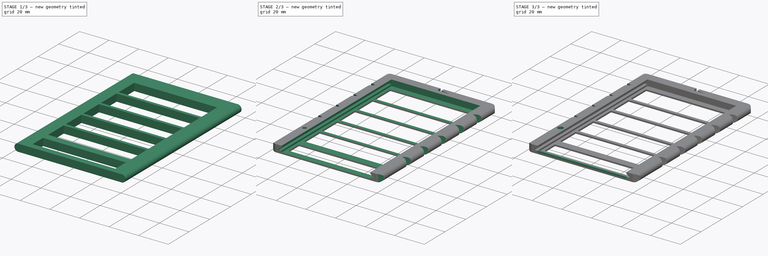
[diagram: build sequence overview — one tinted view per stage of 3, left to right]
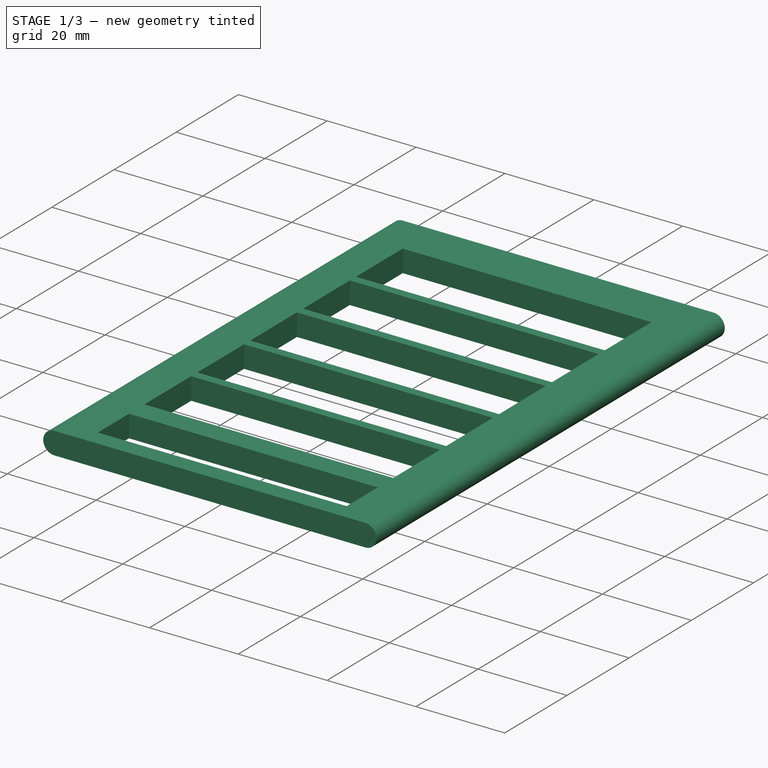
[diagram: stage 1 of 3 — iso view after this stage's code; geometry added in this stage tinted green]
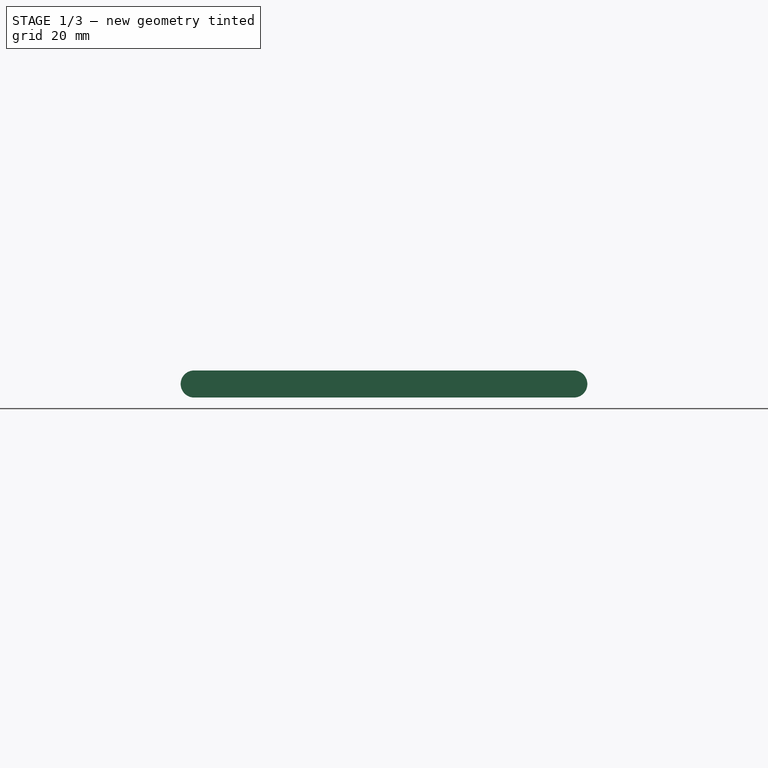
[diagram: stage 1 of 3 — front view after this stage's code; geometry added in this stage tinted green]
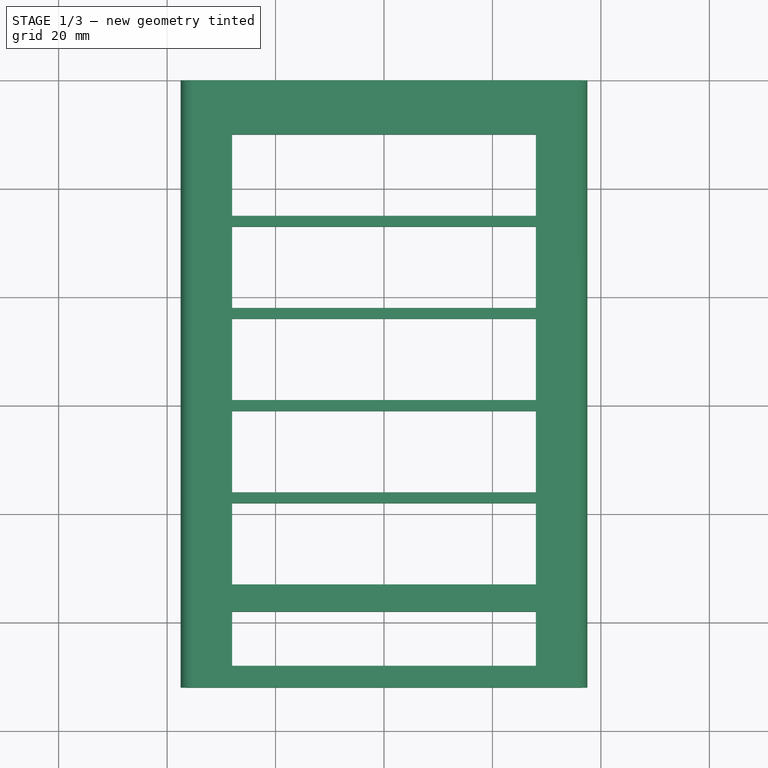
[diagram: stage 1 of 3 — top view after this stage's code; geometry added in this stage tinted green]
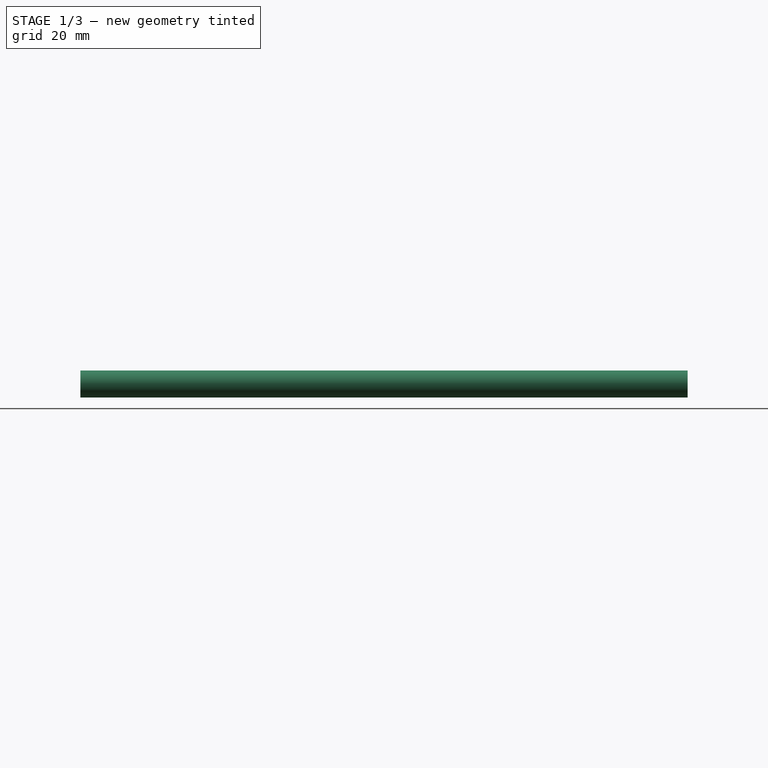
[diagram: stage 1 of 3 — right view after this stage's code; geometry added in this stage tinted green]
FCSTD DOCUMENT  (FreeCAD 0.18R16146 (Git))
Label: Bandolino_Front_V3
License: All rights reserved
LicenseURL: http://en.wikipedia.org/wiki/All_rights_reserved
objects: Sketcher::SketchObject×7, PartDesign::Plane×6, PartDesign::Pocket×5, PartDesign::Pad×2, PartDesign::Body×1
note: 28 computed .brp shape members not serialized (recipe doc carries the construction recipe); baked Part::Feature solids carry a one-line shape summary decoded from their .brp

FEATURE [Sketcher::SketchObject] Sketch
  MapMode = 5
  Placement = pos=(0,0,0) rot=(1,0,0;1.5708rad)
  Support = -> [XZ_Plane]
  sketch-geometry (4):
    g0: ArcOfCircle CenterX=-35 CenterY=2.5 CenterZ=0 NormalX=0 NormalY=0 NormalZ=1 AngleXU=0 Radius=2.5 StartAngle=1.5708 EndAngle=4.71239
    g1: ArcOfCircle CenterX=35 CenterY=2.5 CenterZ=0 NormalX=0 NormalY=0 NormalZ=1 AngleXU=0 Radius=2.5 StartAngle=4.71239 EndAngle=7.85398
    g2: LineSegment StartX=-35 StartY=2.2626e-12 StartZ=0 EndX=35 EndY=2.2626e-12 EndZ=0
    g3: LineSegment StartX=-35 StartY=5 StartZ=0 EndX=35 EndY=5 EndZ=0
  constraints (9):
    c: Tangent(g0,g3) = 1.5708
    c: Tangent(g0,g2) = -1.5708
    c: Tangent(g2,g1) = -1.5708
    c: Tangent(g3,g1) = 1.5708
    c: Horizontal(g2)
    c: Equal(g0,g1)
    c: DistanceX(g2,g2) = 70
    c: DistanceY(g0,g0) = 5
    c: Symmetric(g0,g1,g-1)
FEATURE [PartDesign::Pad] Pad
  Length = 112
  Length2 = 100
  Placement = pos=(0,0,0) rot=(1,0,0;1.5708rad)
  Profile = -> Sketch
  Type = 0
FEATURE [PartDesign::Plane] DatumPlane
  Length = 94.1311
  MapMode = 5
  Placement = pos=(-1.443e-13,3.3e-15,5) rot=(0,0,1;3.14159rad)
  ResizeMode = 0
  Support = -> [Pad]
  Width = 141.131
FEATURE [Sketcher::SketchObject] Sketch001
  MapMode = 5
  Placement = pos=(-1.443e-13,3.3e-15,5) rot=(0,0,1;3.14159rad)
  Support = -> [DatumPlane]
  sketch-geometry (24):
    g0: LineSegment StartX=-28 StartY=108 StartZ=0 EndX=28 EndY=108 EndZ=0
    g1: LineSegment StartX=28 StartY=108 StartZ=0 EndX=28 EndY=98 EndZ=0
    g2: LineSegment StartX=28 StartY=98 StartZ=0 EndX=-28 EndY=98 EndZ=0
    g3: LineSegment StartX=-28 StartY=98 StartZ=0 EndX=-28 EndY=108 EndZ=0
    g4: LineSegment StartX=-28 StartY=93 StartZ=0 EndX=28 EndY=93 EndZ=0
    g5: LineSegment StartX=28 StartY=93 StartZ=0 EndX=28 EndY=78 EndZ=0
    g6: LineSegment StartX=28 StartY=78 StartZ=0 EndX=-28 EndY=78 EndZ=0
    g7: LineSegment StartX=-28 StartY=78 StartZ=0 EndX=-28 EndY=93 EndZ=0
    g8: LineSegment StartX=-28 StartY=76 StartZ=0 EndX=28 EndY=76 EndZ=0
    g9: LineSegment StartX=28 StartY=76 StartZ=0 EndX=28 EndY=61 EndZ=0
    g10: LineSegment StartX=28 StartY=61 StartZ=0 EndX=-28 EndY=61 EndZ=0
    g11: LineSegment StartX=-28 StartY=61 StartZ=0 EndX=-28 EndY=76 EndZ=0
    g12: LineSegment StartX=-28 StartY=59 StartZ=0 EndX=28 EndY=59 EndZ=0
    g13: LineSegment StartX=28 StartY=59 StartZ=0 EndX=28 EndY=44 EndZ=0
    g14: LineSegment StartX=28 StartY=44 StartZ=0 EndX=-28 EndY=44 EndZ=0
    g15: LineSegment StartX=-28 StartY=44 StartZ=0 EndX=-28 EndY=59 EndZ=0
    g16: LineSegment StartX=-28 StartY=42 StartZ=0 EndX=28 EndY=42 EndZ=0
    g17: LineSegment StartX=28 StartY=42 StartZ=0 EndX=28 EndY=27 EndZ=0
    g18: LineSegment StartX=28 StartY=27 StartZ=0 EndX=-28 EndY=27 EndZ=0
    g19: LineSegment StartX=-28 StartY=27 StartZ=0 EndX=-28 EndY=42 EndZ=0
    g20: LineSegment StartX=-28 StartY=25 StartZ=0 EndX=28 EndY=25 EndZ=0
    g21: LineSegment StartX=28 StartY=25 StartZ=0 EndX=28 EndY=10 EndZ=0
    g22: LineSegment StartX=28 StartY=10 StartZ=0 EndX=-28 EndY=10 EndZ=0
    g23: LineSegment StartX=-28 StartY=10 StartZ=0 EndX=-28 EndY=25 EndZ=0
  constraints (71):
    c: Coincident(g0,g1)
    c: Coincident(g1,g2)
    c: Coincident(g2,g3)
    c: Coincident(g3,g0)
    c: Horizontal(g0)
    c: Horizontal(g2)
    c: Vertical(g1)
    c: Vertical(g3)
    c: Coincident(g4,g5)
    c: Coincident(g5,g6)
    c: Coincident(g6,g7)
    c: Coincident(g7,g4)
    c: Horizontal(g4)
    c: Horizontal(g6)
    c: Vertical(g5)
    c: Vertical(g7)
    c: Coincident(g8,g9)
    c: Coincident(g9,g10)
    c: Coincident(g10,g11)
    c: Coincident(g11,g8)
    c: Horizontal(g8)
    c: Horizontal(g10)
    c: Vertical(g9)
    c: Vertical(g11)
    c: Coincident(g12,g13)
    c: Coincident(g13,g14)
    c: Coincident(g14,g15)
    c: Coincident(g15,g12)
    c: Horizontal(g12)
    c: Horizontal(g14)
    c: Vertical(g13)
    c: Vertical(g15)
    c: Coincident(g16,g17)
    c: Coincident(g17,g18)
    c: Coincident(g18,g19)
    c: Coincident(g19,g16)
    c: Horizontal(g16)
    c: Horizontal(g18)
    c: Vertical(g17)
    c: Vertical(g19)
    c: Coincident(g20,g21)
    c: Coincident(g21,g22)
    c: Coincident(g22,g23)
    c: Coincident(g23,g20)
    c: Horizontal(g20)
    c: Vertical(g21)
    c: Vertical(g23)
    c: DistanceY(g21,g21) = 15
    c: DistanceX(g22,g22) = 56
    c: Equal(g22,g18)
    c: Equal(g18,g14)
    c: Equal(g14,g10)
    c: Equal(g10,g6)
    c: Equal(g6,g2)
    c: Equal(g21,g17)
    c: Equal(g17,g13)
    c: Equal(g13,g9)
    c: Equal(g9,g5)
    c: DistanceY(g1,g1) = 10
    c: DistanceY(g-1,g22) = 10
    c: Symmetric(g22,g21,g-2)
    c: DistanceY(g20,g17) = 2
    c: Vertical(g17,g20)
    c: DistanceY(g16,g13) = 2
    c: Vertical(g13,g16)
    c: DistanceY(g12,g9) = 2
    c: Vertical(g12,g9)
    c: DistanceY(g8,g5) = 2
    c: Vertical(g8,g5)
    c: DistanceY(g4,g1) = 5
    c: Vertical(g4,g1)
FEATURE [PartDesign::Pocket] Pocket  label="Pocket Fenster"
  BaseFeature = -> Pad
  Length = 5
  Length2 = 100
  Placement = pos=(0,0,0) rot=(1,0,0;1.5708rad)
  Profile = -> Sketch001
  Type = 1
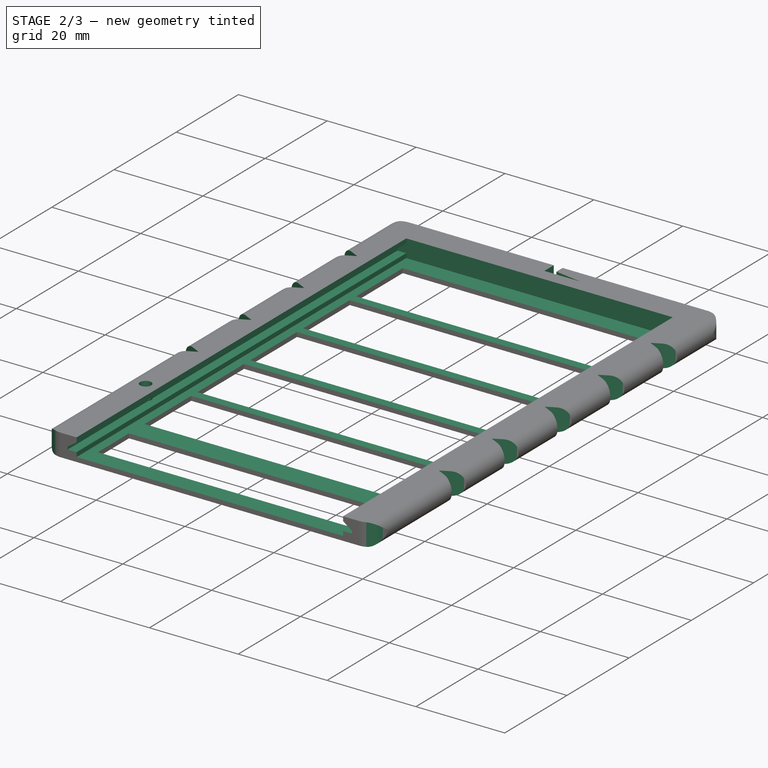
[diagram: stage 2 of 3 — iso view after this stage's code; geometry added in this stage tinted green]
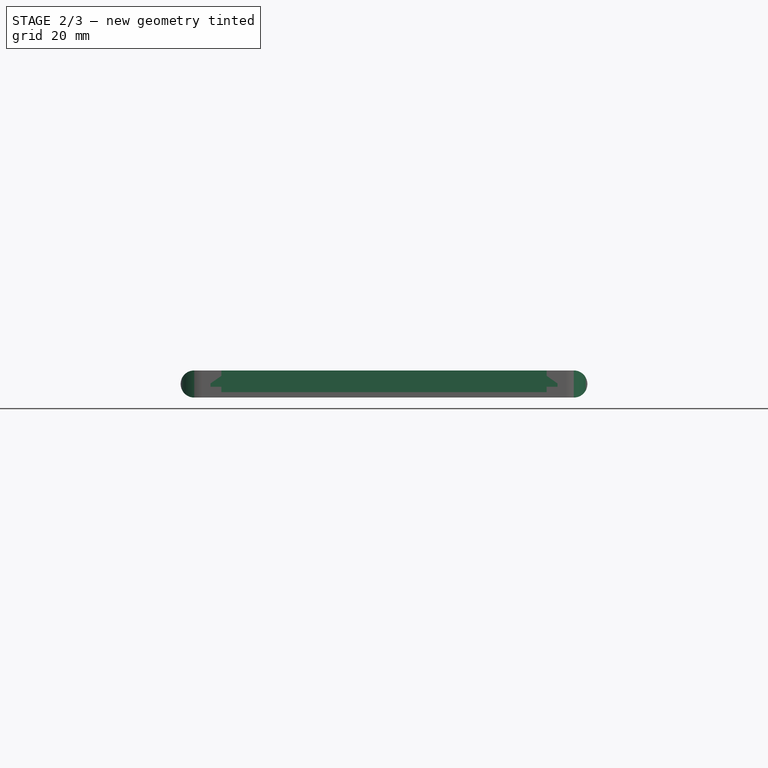
[diagram: stage 2 of 3 — front view after this stage's code; geometry added in this stage tinted green]
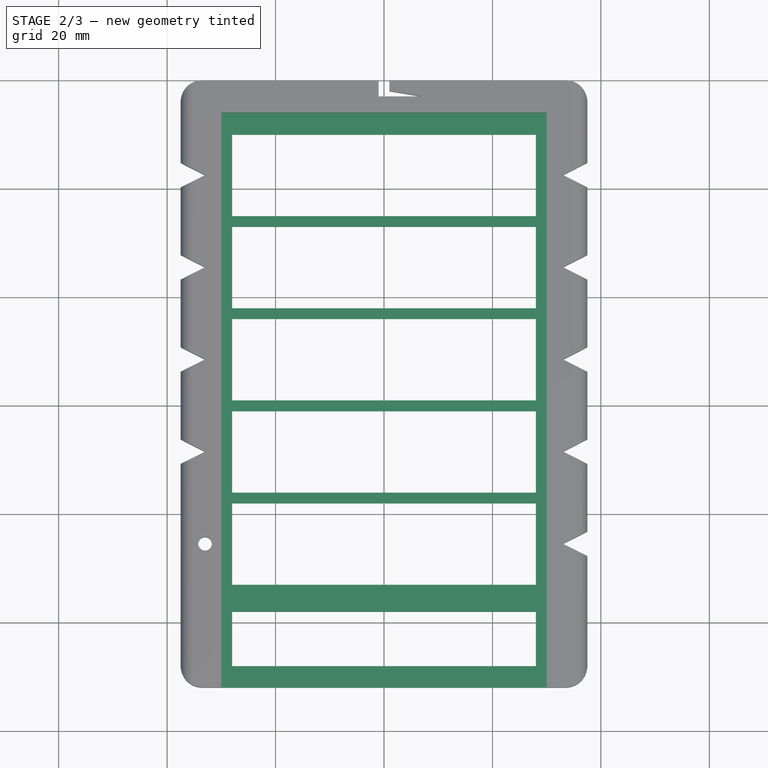
[diagram: stage 2 of 3 — top view after this stage's code; geometry added in this stage tinted green]
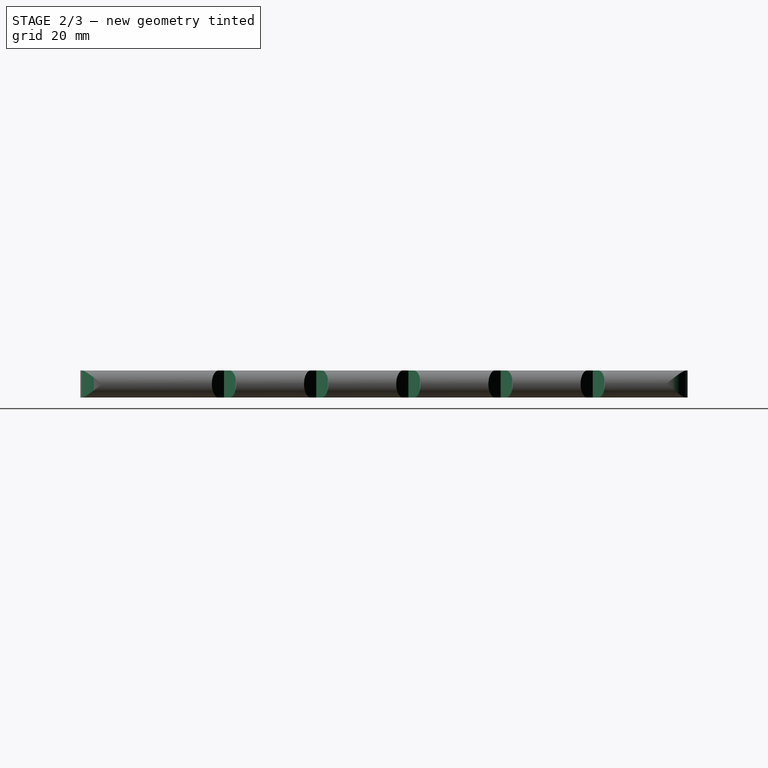
[diagram: stage 2 of 3 — right view after this stage's code; geometry added in this stage tinted green]
FEATURE [PartDesign::Plane] DatumPlane001
  Length = 82.746
  MapMode = 5
  Placement = pos=(0,-112,4.95e-14) rot=(1,0,0;1.5708rad)
  ResizeMode = 0
  Support = -> [Pocket]
  Width = 27.746
FEATURE [Sketcher::SketchObject] Sketch002
  MapMode = 5
  Placement = pos=(0,-112,4.95e-14) rot=(1,0,0;1.5708rad)
  Support = -> [DatumPlane001]
  sketch-geometry (12):
    g0: LineSegment StartX=-30 StartY=9 StartZ=0 EndX=30 EndY=9 EndZ=0
    g1: LineSegment StartX=30 StartY=9 StartZ=0 EndX=30 EndY=4 EndZ=0
    g2: LineSegment StartX=-30 StartY=4 StartZ=0 EndX=-30 EndY=9 EndZ=0
    g3: LineSegment StartX=-32 StartY=2 StartZ=0 EndX=-30 EndY=2 EndZ=0
    g4: LineSegment StartX=-30 StartY=2 StartZ=0 EndX=-30 EndY=1 EndZ=0
    g5: LineSegment StartX=-30 StartY=1 StartZ=0 EndX=30 EndY=1 EndZ=0
    g6: LineSegment StartX=30 StartY=1 StartZ=0 EndX=30 EndY=2 EndZ=0
    g7: LineSegment StartX=30 StartY=2 StartZ=0 EndX=32 EndY=2 EndZ=0
    g8: LineSegment StartX=-30 StartY=4 StartZ=0 EndX=-32 EndY=2.6 EndZ=0
    g9: LineSegment StartX=-32 StartY=2.6 StartZ=0 EndX=-32 EndY=2 EndZ=0
    g10: LineSegment StartX=30 StartY=4 StartZ=0 EndX=32 EndY=2.6 EndZ=0
    g11: LineSegment StartX=32 StartY=2.6 StartZ=0 EndX=32 EndY=2 EndZ=0
  constraints (31):
    c: Coincident(g0,g1)
    c: Vertical(g1)
    c: Coincident(g2,g0)
    c: DistanceX(g0,g0) = 60
    c: DistanceY(g2,g2) = 5
    c: Symmetric(g0,g0,g-2)
    c: Symmetric(g2,g1,g-2)
    c: Horizontal(g3)
    c: Coincident(g3,g4)
    c: Vertical(g4)
    c: Coincident(g4,g5)
    c: Coincident(g5,g6)
    c: Vertical(g6)
    c: Coincident(g6,g7)
    c: Vertical(g2,g3)
    c: Symmetric(g3,g6,g-2)
    c: Horizontal(g5)
    c: DistanceY(g4,g4) = 1
    c: Coincident(g2,g8)
    c: Coincident(g8,g9)
    c: Coincident(g9,g3)
    c: Vertical(g9)
    c: Coincident(g1,g10)
    c: Coincident(g10,g11)
    c: Coincident(g11,g7)
    c: DistanceY(g9,g9) = 0.6
    c: DistanceY(g3,g2) = 2
    c: DistanceY(g-1,g4) = 1
    c: DistanceX(g3,g3) = 2
    c: Symmetric(g7,g3,g-2)
    c: Symmetric(g10,g8,g-2)
FEATURE [PartDesign::Pocket] Pocket001
  BaseFeature = -> Pocket
  Length = 106
  Length2 = 100
  Placement = pos=(0,0,0) rot=(1,0,0;1.5708rad)
  Profile = -> Sketch002
  Type = 0
FEATURE [PartDesign::Plane] DatumPlane002
  Length = 94.1311
  MapMode = 5
  Placement = pos=(-1.443e-13,3.3e-15,5) rot=(0,0,1;3.14159rad)
  ResizeMode = 0
  Support = -> [Pocket001]
  Width = 141.131
FEATURE [Sketcher::SketchObject] Sketch003
  MapMode = 5
  Placement = pos=(-1.443e-13,3.3e-15,5) rot=(0,0,1;3.14159rad)
  Support = -> [DatumPlane002]
  sketch-geometry (33):
    g0: LineSegment StartX=-38 StartY=20 StartZ=0 EndX=-33 EndY=17.5 EndZ=0
    g1: LineSegment StartX=-33 StartY=17.5 StartZ=0 EndX=-38 EndY=15 EndZ=0
    g2: LineSegment StartX=-38 StartY=15 StartZ=0 EndX=-38 EndY=20 EndZ=0
    g3: LineSegment StartX=-38 StartY=32 StartZ=0 EndX=-33 EndY=34.5 EndZ=0
    g4: LineSegment StartX=-33 StartY=34.5 StartZ=0 EndX=-38 EndY=37 EndZ=0
    g5: LineSegment StartX=-38 StartY=37 StartZ=0 EndX=-38 EndY=32 EndZ=0
    g6: LineSegment StartX=38 StartY=20 StartZ=0 EndX=33 EndY=17.5 EndZ=0
    g7: LineSegment StartX=33 StartY=17.5 StartZ=0 EndX=38 EndY=15 EndZ=0
    g8: LineSegment StartX=38 StartY=15 StartZ=0 EndX=38 EndY=20 EndZ=0
    g9: LineSegment StartX=-38 StartY=54 StartZ=0 EndX=-38 EndY=49 EndZ=0
    g10: LineSegment StartX=-38 StartY=49 StartZ=0 EndX=-33 EndY=51.5 EndZ=0
    g11: LineSegment StartX=-33 StartY=51.5 StartZ=0 EndX=-38 EndY=54 EndZ=0
    g12: LineSegment StartX=-38 StartY=71 StartZ=0 EndX=-38 EndY=66 EndZ=0
    g13: LineSegment StartX=-38 StartY=66 StartZ=0 EndX=-33 EndY=68.5 EndZ=0
    g14: LineSegment StartX=-33 StartY=68.5 StartZ=0 EndX=-38 EndY=71 EndZ=0
    g15: LineSegment StartX=-38 StartY=88 StartZ=0 EndX=-38 EndY=83 EndZ=0
    g16: LineSegment StartX=-38 StartY=83 StartZ=0 EndX=-33 EndY=85.5 EndZ=0
    g17: LineSegment StartX=-33 StartY=85.5 StartZ=0 EndX=-38 EndY=88 EndZ=0
    g18: LineSegment StartX=38 StartY=32 StartZ=0 EndX=38 EndY=37 EndZ=0
    g19: LineSegment StartX=38 StartY=37 StartZ=0 EndX=33 EndY=34.5 EndZ=0
    g20: LineSegment StartX=33 StartY=34.5 StartZ=0 EndX=38 EndY=32 EndZ=0
    g21: LineSegment StartX=38 StartY=49 StartZ=0 EndX=38 EndY=54 EndZ=0
    g22: LineSegment StartX=38 StartY=54 StartZ=0 EndX=33 EndY=51.5 EndZ=0
    g23: LineSegment StartX=33 StartY=51.5 StartZ=0 EndX=38 EndY=49 EndZ=0
    g24: LineSegment StartX=38 StartY=66 StartZ=0 EndX=38 EndY=71 EndZ=0
    g25: LineSegment StartX=38 StartY=71 StartZ=0 EndX=33 EndY=68.5 EndZ=0
    g26: LineSegment StartX=33 StartY=68.5 StartZ=0 EndX=38 EndY=66 EndZ=0
    g27: Circle CenterX=33 CenterY=85.5 CenterZ=0 NormalX=0 NormalY=0 NormalZ=1 AngleXU=0 Radius=1.25
    g28: LineSegment StartX=-1 StartY=0 StartZ=0 EndX=1 EndY=0 EndZ=0
    g29: LineSegment StartX=1 StartY=0 StartZ=0 EndX=1 EndY=3 EndZ=0
    g30: LineSegment StartX=1 StartY=3 StartZ=0 EndX=-7 EndY=3 EndZ=0
    g31: LineSegment StartX=-7 StartY=3 StartZ=0 EndX=-1 EndY=2 EndZ=0
    g32: LineSegment StartX=-1 StartY=2 StartZ=0 EndX=-1 EndY=0 EndZ=0
  constraints (93):
    c: Coincident(g0,g1)
    c: Coincident(g2,g1)
    c: Coincident(g2,g0)
    c: Vertical(g2)
    c: Coincident(g3,g4)
    c: Coincident(g4,g5)
    c: Coincident(g5,g3)
    c: Coincident(g6,g7)
    c: Coincident(g7,g8)
    c: Coincident(g8,g6)
    c: Vertical(g8)
    c: DistanceY(g2,g2) = 5
    c: DistanceX(g1,g0) = 5
    c: Equal(g1,g0)
    c: Equal(g2,g8)
    c: DistanceX(g6,g7) = 5
    c: Symmetric(g0,g6,g-2)
    c: Equal(g6,g7)
    c: DistanceY(g-1,g0) = 17.5
    c: DistanceX(g1,g-1) = 38
    c: Vertical(g5)
    c: DistanceY(g0,g3) = 17
    c: Vertical(g9)
    c: Coincident(g9,g10)
    c: Coincident(g10,g11)
    c: Coincident(g11,g9)
    c: Coincident(g12,g13)
    c: Coincident(g13,g14)
    c: Vertical(g15)
    c: Coincident(g15,g16)
    c: Coincident(g16,g17)
    c: Coincident(g17,g15)
    c: Coincident(g12,g14)
    c: Vertical(g12)
    c: DistanceY(g3,g10) = 17
    c: DistanceY(g10,g13) = 17
    c: DistanceY(g13,g16) = 17
    c: Vertical(g0,g3)
    c: Vertical(g3,g10)
    c: Vertical(g10,g13)
    c: Vertical(g13,g16)
    c: Equal(g2,g5)
    c: Equal(g5,g9)
    c: Equal(g9,g12)
    c: Equal(g12,g15)
    c: Equal(g0,g3)
    c: Equal(g3,g4)
    c: Equal(g4,g10)
    c: Equal(g10,g11)
    c: Equal(g11,g13)
    c: Equal(g13,g14)
    c: Equal(g14,g16)
    c: Equal(g16,g17)
    c: Vertical(g18)
    c: Coincident(g18,g19)
    c: Coincident(g19,g20)
    c: Coincident(g20,g18)
    c: Coincident(g21,g22)
    c: Coincident(g22,g23)
    c: Coincident(g23,g21)
    c: Coincident(g24,g25)
    c: Coincident(g25,g26)
    c: Coincident(g26,g24)
    c: Vertical(g21)
    c: Vertical(g24)
    c: Equal(g8,g18)
    c: Equal(g18,g21)
    c: Equal(g21,g24)
    c: Equal(g6,g20)
    c: Equal(g20,g19)
    c: Equal(g19,g23)
    c: Equal(g23,g22)
    c: Equal(g22,g26)
    c: Equal(g26,g25)
    c: Symmetric(g13,g25,g-2)
    c: Symmetric(g10,g22,g-2)
    c: Symmetric(g3,g19,g-2)
    c: Symmetric(g16,g27,g-2)
    c: Diameter(g27) = 2.5
    c: Coincident(g28,g29)
    c: Vertical(g29)
    c: Coincident(g29,g30)
    c: Coincident(g30,g31)
    c: Coincident(g31,g32)
    c: Coincident(g32,g28)
    c: Vertical(g32)
    c: Horizontal(g30)
    c: Symmetric(g28,g28,g-2)
    c: DistanceY(g29,g29) = 3
    c: DistanceY(g32,g32) = 2
    c: DistanceX(g30,g30) = 8
    c: DistanceX(g28,g28) = 2
    c: PointOnObject(g28,g-1)
FEATURE [PartDesign::Pocket] Pocket002
  BaseFeature = -> Pocket001
  Length = 5
  Length2 = 100
  Placement = pos=(0,0,0) rot=(1,0,0;1.5708rad)
  Profile = -> Sketch003
  Type = 1
FEATURE [PartDesign::Plane] DatumPlane003
  Length = 94.1311
  MapMode = 5
  Placement = pos=(0,0,2.2626e-12) rot=(1,0,0;3.14159rad)
  ResizeMode = 0
  Support = -> [Pocket002]
  Width = 141.131
FEATURE [Sketcher::SketchObject] Sketch004
  MapMode = 5
  Placement = pos=(0,0,2.2626e-12) rot=(1,0,0;3.14159rad)
  Support = -> [DatumPlane003]
  sketch-geometry (12):
    g0: ArcOfCircle CenterX=-33.5 CenterY=4 CenterZ=0 NormalX=0 NormalY=0 NormalZ=1 AngleXU=0 Radius=4 StartAngle=3.14159 EndAngle=4.71239
    g1: LineSegment StartX=-37.5 StartY=4 StartZ=0 EndX=-37.5 EndY=-1.8e-15 EndZ=0
    g2: LineSegment StartX=-37.5 StartY=-2.2e-15 StartZ=0 EndX=-33.5 EndY=-2.2e-15 EndZ=0
    g3: ArcOfCircle CenterX=33.5 CenterY=4 CenterZ=0 NormalX=0 NormalY=0 NormalZ=1 AngleXU=0 Radius=4 StartAngle=4.71239 EndAngle=6.28319
    g4: LineSegment StartX=33.5 StartY=-2.7e-15 StartZ=0 EndX=37.5 EndY=-2.7e-15 EndZ=0
    g5: LineSegment StartX=37.5 StartY=-2.7e-15 StartZ=0 EndX=37.5 EndY=4 EndZ=0
    g6: ArcOfCircle CenterX=-33.5 CenterY=108 CenterZ=0 NormalX=0 NormalY=0 NormalZ=1 AngleXU=0 Radius=4 StartAngle=1.5708 EndAngle=3.14159
    g7: ArcOfCircle CenterX=33.5 CenterY=108 CenterZ=0 NormalX=0 NormalY=0 NormalZ=1 AngleXU=0 Radius=4 StartAngle=1e-15 EndAngle=1.5708
    g8: LineSegment StartX=33.5 StartY=112 StartZ=0 EndX=37.5 EndY=112 EndZ=0
    g9: LineSegment StartX=37.5 StartY=112 StartZ=0 EndX=37.5 EndY=108 EndZ=0
    g10: LineSegment StartX=-33.5 StartY=112 StartZ=0 EndX=-37.5 EndY=112 EndZ=0
    g11: LineSegment StartX=-37.5 StartY=112 StartZ=0 EndX=-37.5 EndY=108 EndZ=0
  constraints (39):
    c: PointOnObject(g0,g-1)
    c: Vertical(g0,g0)
    c: Horizontal(g0,g0)
    c: Radius(g0) = 4
    c: Coincident(g0,g1)
    c: Coincident(g1,g2)
    c: Coincident(g2,g0)
    c: Horizontal(g2)
    c: Vertical(g1)
    c: DistanceX(g1,g-1) = 37.5
    c: Radius(g3) = 4
    c: Vertical(g3,g3)
    c: Horizontal(g3,g3)
    c: Coincident(g4,g3)
    c: Horizontal(g4)
    c: Coincident(g5,g4)
    c: Vertical(g5)
    c: Coincident(g5,g3)
    c: Symmetric(g1,g4,g-2)
    c: Radius(g6) = 4
    c: Radius(g7) = 4
    c: Horizontal(g6,g6)
    c: Vertical(g6,g6)
    c: Horizontal(g7,g7)
    c: Vertical(g7,g7)
    c: Coincident(g7,g8)
    c: Coincident(g8,g9)
    c: Coincident(g9,g7)
    c: Vertical(g9)
    c: Horizontal(g8)
    c: Coincident(g6,g10)
    c: Coincident(g10,g11)
    c: Coincident(g11,g6)
    c: Vertical(g11)
    c: Horizontal(g10)
    c: Vertical(g10,g1)
    c: Vertical(g4,g8)
    c: Horizontal(g10,g8)
    c: DistanceY(g1,g10) = 112
FEATURE [PartDesign::Pocket] Pocket003
  BaseFeature = -> Pocket002
  Length = 5
  Length2 = 100
  Placement = pos=(0,0,0) rot=(1,0,0;1.5708rad)
  Profile = -> Sketch004
  Type = 1
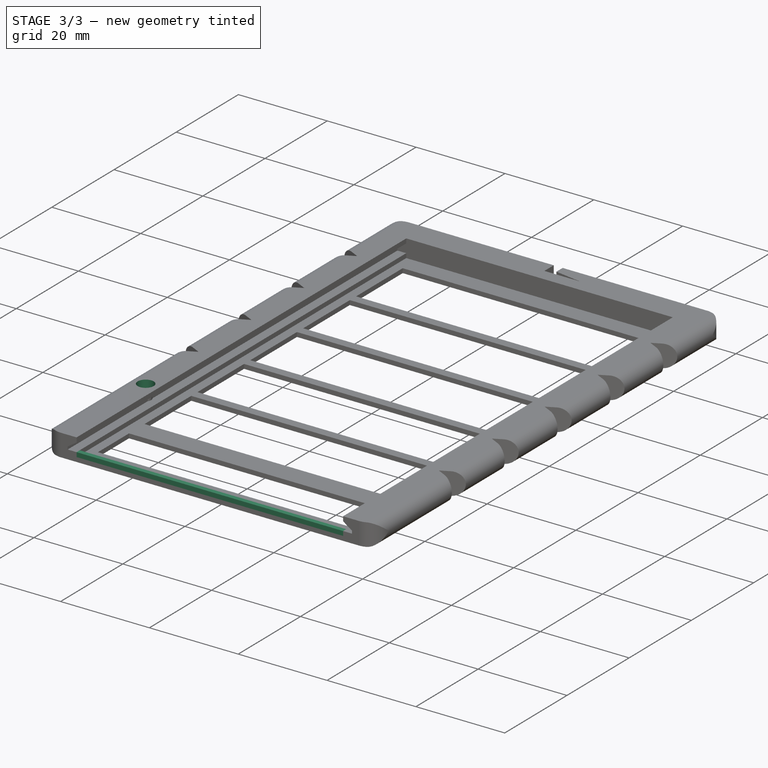
[diagram: stage 3 of 3 — iso view after this stage's code; geometry added in this stage tinted green]
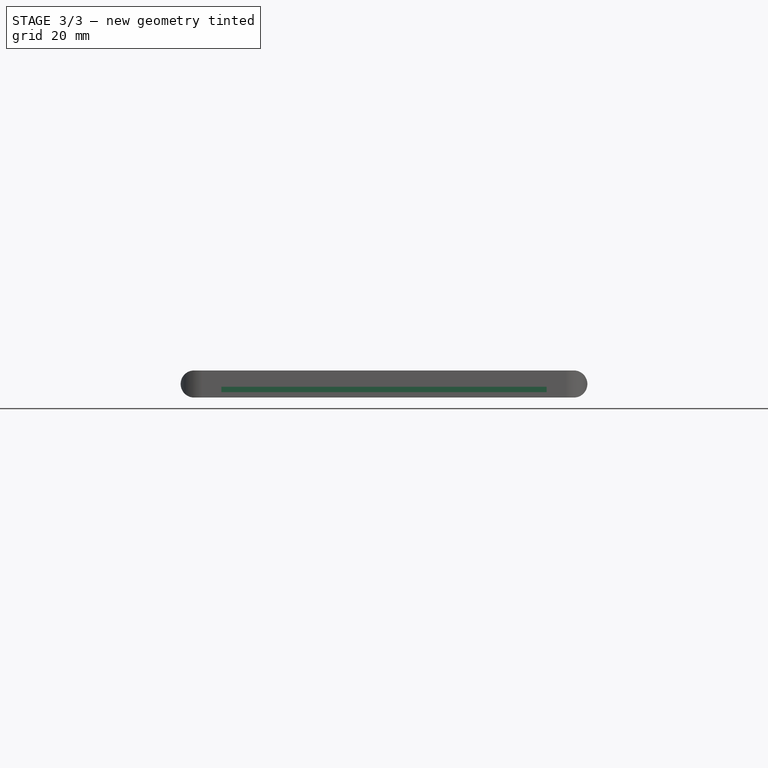
[diagram: stage 3 of 3 — front view after this stage's code; geometry added in this stage tinted green]
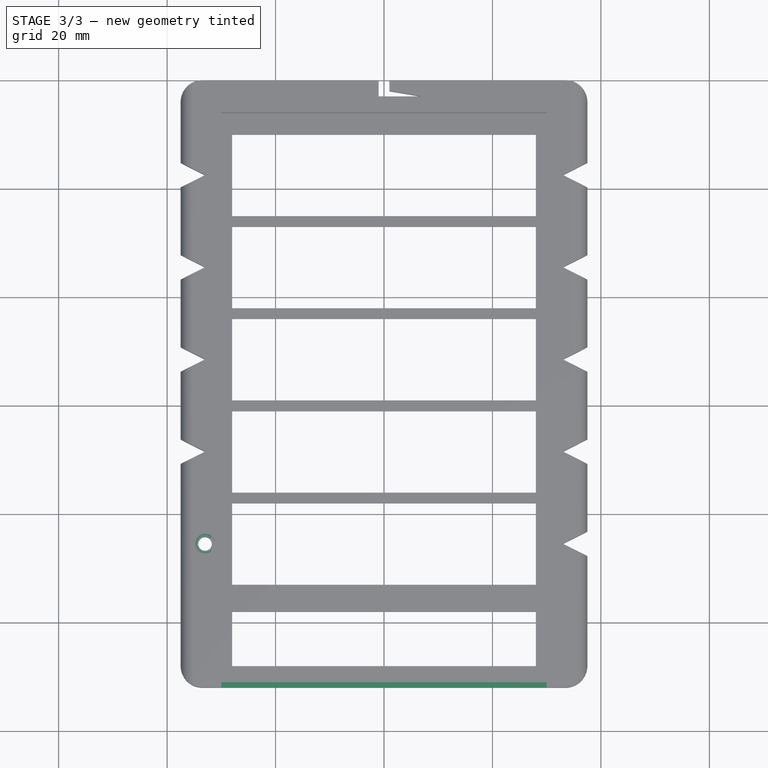
[diagram: stage 3 of 3 — top view after this stage's code; geometry added in this stage tinted green]
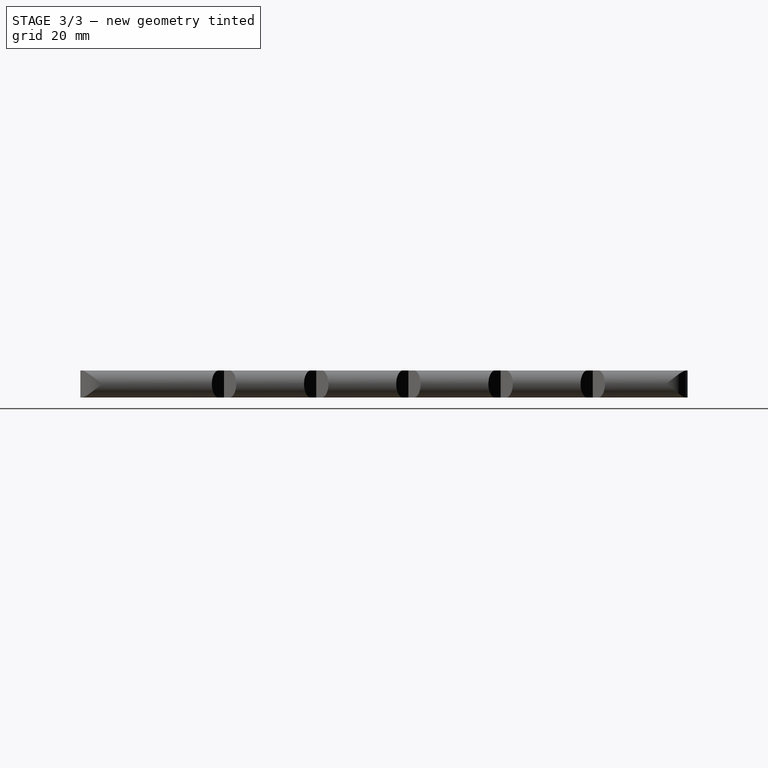
[diagram: stage 3 of 3 — right view after this stage's code; geometry added in this stage tinted green]
FEATURE [PartDesign::Plane] DatumPlane004
  Length = 94.1311
  MapMode = 5
  Placement = pos=(-1.443e-13,3.3e-15,5) rot=(0,0,1;3.14159rad)
  ResizeMode = 0
  Support = -> [Pocket003]
  Width = 141.131
FEATURE [Sketcher::SketchObject] Sketch005
  ExternalGeometry = -> [Pocket003]
  MapMode = 5
  Placement = pos=(-1.443e-13,3.3e-15,5) rot=(0,0,1;3.14159rad)
  Support = -> [DatumPlane004]
  sketch-geometry (1):
    g0: Circle CenterX=33 CenterY=85.5 CenterZ=0 NormalX=0 NormalY=0 NormalZ=1 AngleXU=0 Radius=1.8
  constraints (2):
    c: Coincident(g0,g-3)
    c: Radius(g0) = 1.8
FEATURE [PartDesign::Pocket] Pocket004
  BaseFeature = -> Pocket003
  Length = 2
  Length2 = 100
  Placement = pos=(0,0,0) rot=(1,0,0;1.5708rad)
  Profile = -> Sketch005
  Type = 0
FEATURE [PartDesign::Plane] DatumPlane005
  Length = 94.1311
  MapMode = 5
  Placement = pos=(0,1.6e-15,1) rot=(0,0,1;3.14159rad)
  ResizeMode = 0
  Support = -> [Pocket004]
  Width = 141.131
FEATURE [Sketcher::SketchObject] Sketch006
  MapMode = 5
  Placement = pos=(0,1.6e-15,1) rot=(0,0,1;3.14159rad)
  Support = -> [DatumPlane005]
  sketch-geometry (4):
    g0: LineSegment StartX=-30 StartY=112 StartZ=0 EndX=30 EndY=112 EndZ=0
    g1: LineSegment StartX=30 StartY=112 StartZ=0 EndX=30 EndY=111 EndZ=0
    g2: LineSegment StartX=30 StartY=111 StartZ=0 EndX=-30 EndY=111 EndZ=0
    g3: LineSegment StartX=-30 StartY=111 StartZ=0 EndX=-30 EndY=112 EndZ=0
  constraints (11):
    c: Coincident(g0,g1)
    c: Coincident(g1,g2)
    c: Coincident(g2,g3)
    c: Coincident(g3,g0)
    c: Horizontal(g2)
    c: Vertical(g1)
    c: Vertical(g3)
    c: DistanceY(g1,g1) = 1
    c: DistanceX(g0,g0) = 60
    c: Symmetric(g0,g0,g-2)
    c: DistanceY(g0) = 112
FEATURE [PartDesign::Pad] Pad001
  BaseFeature = -> Pocket004
  Length = 1
  Length2 = 100
  Placement = pos=(0,0,0) rot=(1,0,0;1.5708rad)
  Profile = -> Sketch006
  Type = 0
FEATURE [PartDesign::Body] Body
  Group = -> [Sketch,Pad,DatumPlane,Sketch001,Pocket,DatumPlane001,Sketch002,Pocket001,DatumPlane002,Sketch003,Pocket002,DatumPlane003,Sketch004,Pocket003,DatumPlane004,Sketch005,Pocket004,DatumPlane005,Sketch006,Pad001]
  Origin = -> Origin
  Tip = -> Pad001
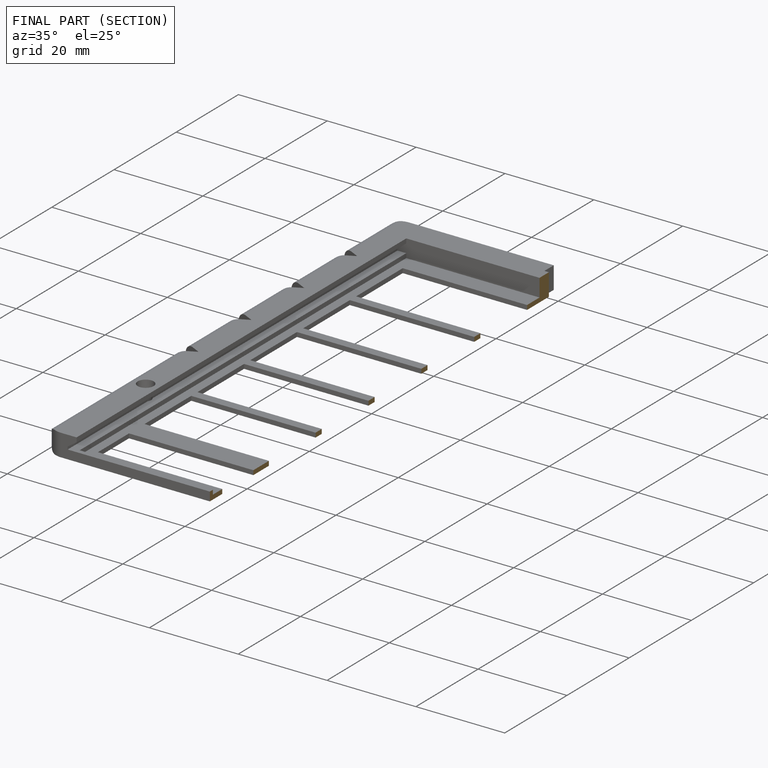
[diagram: finished part — half-section view (interior)]
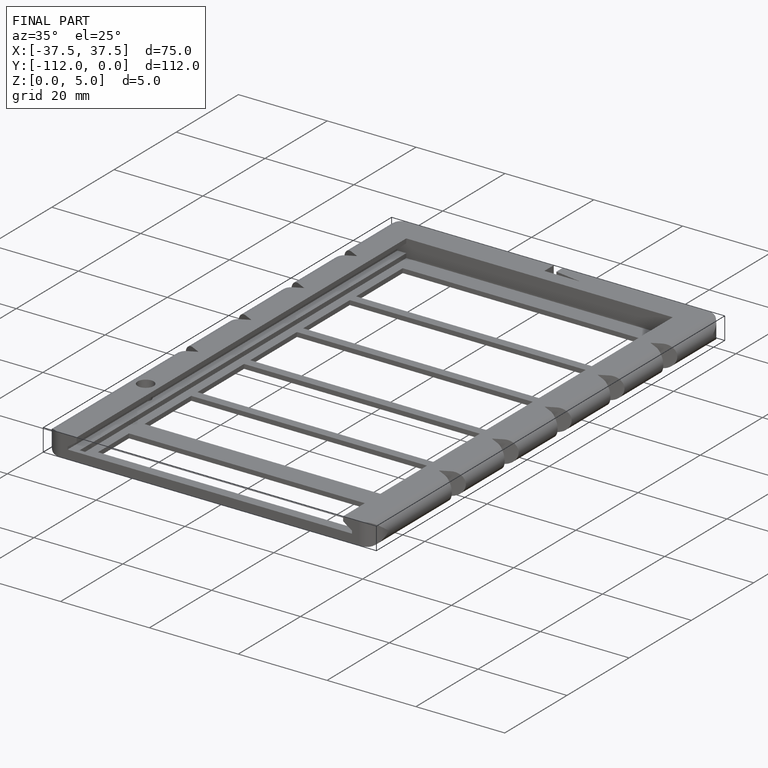
[diagram: finished part — iso view with bounding-box wireframe]
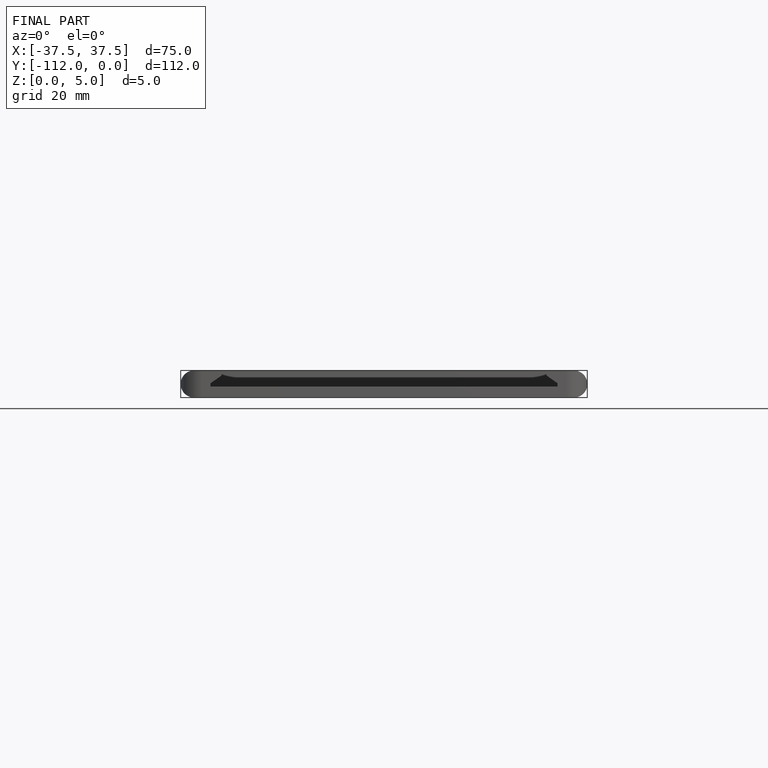
[diagram: finished part — front view with bounding-box wireframe]
